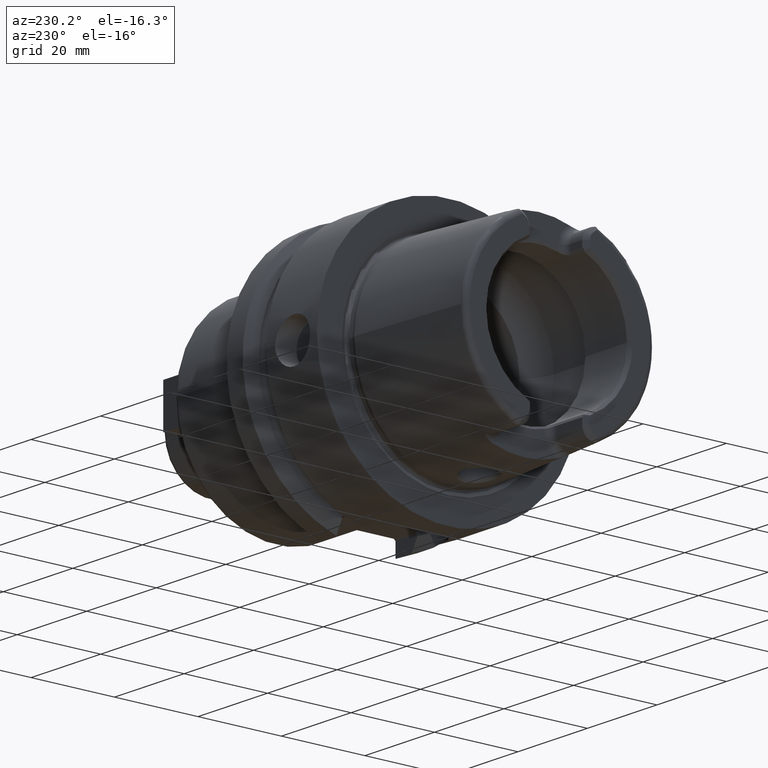
[diagram: clean part render]
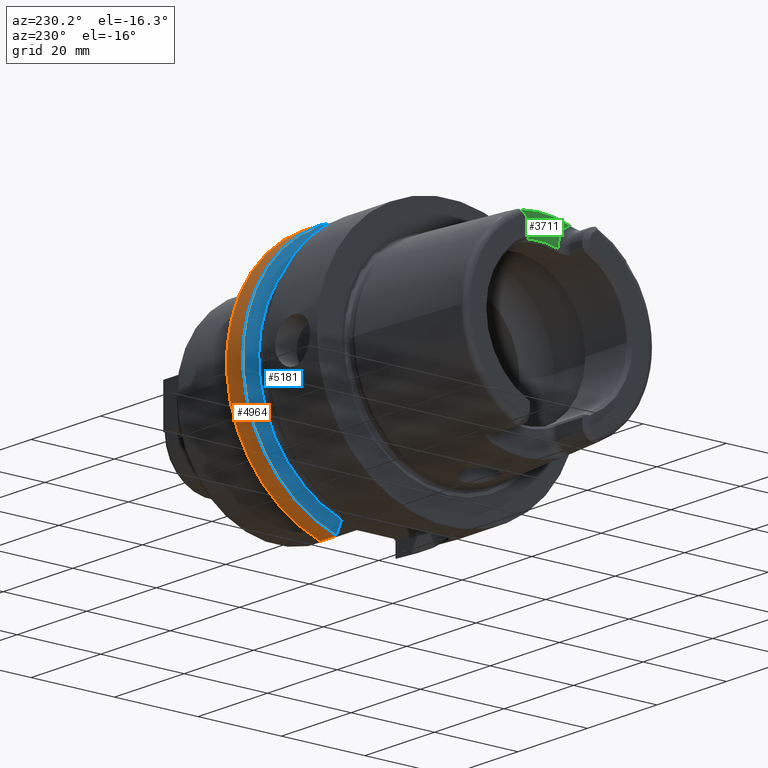
[diagram: same view with three faces highlighted in distinct colors, each labeled with its STEP entity id]
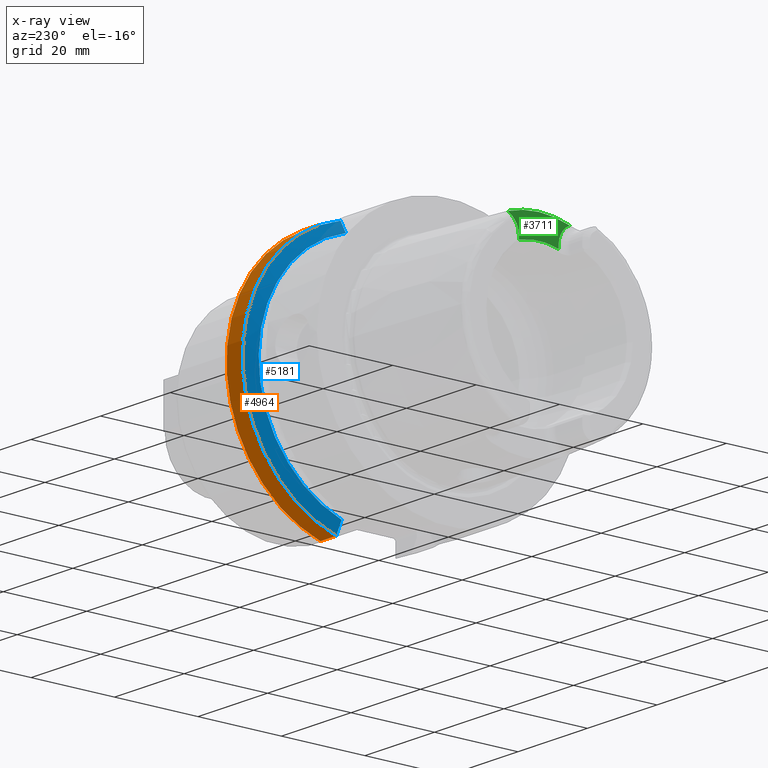
[diagram: x-ray of the same camera — body ghosted, the three highlighted faces saturated]
A machine part, auxiliary view with three faces highlighted in distinct colors.
The next image is the same camera in x-ray (body ghosted, the three faces saturated) — at least one of them is partly hidden behind the body in this view.
Their STEP definitions:

[orange] entity #4964 — the highlighted cylindrical surface (partial cylindrical patch) has radius 31.5 mm, axis along (1, 0, 0).
#1324=DIRECTION('',(-1.E0,0.E0,0.E0));
#1325=VECTOR('',#1324,4.622500925241E0);
#1326=CARTESIAN_POINT('',(2.6E1,9.0175E0,-3.018169467989E1));
#1327=LINE('',#1326,#1325);
#1557=DIRECTION('',(1.E0,0.E0,0.E0));
#1558=VECTOR('',#1557,4.622500925241E0);
#1559=CARTESIAN_POINT('',(2.137749907476E1,8.0175E0,3.046259499370E1));
#1560=LINE('',#1559,#1558);
#1565=CARTESIAN_POINT('',(2.6E1,0.E0,0.E0));
#1566=DIRECTION('',(1.E0,0.E0,0.E0));
#1567=DIRECTION('',(0.E0,2.862698412698E-1,-9.581490374568E-1));
#1568=AXIS2_PLACEMENT_3D('',#1565,#1566,#1567);
#1773=CARTESIAN_POINT('',(2.137749907476E1,9.0175E0,-3.018169467989E1));
#1780=CARTESIAN_POINT('',(2.137749907476E1,0.E0,0.E0));
#1781=DIRECTION('',(1.E0,0.E0,0.E0));
#1782=DIRECTION('',(0.E0,2.862698412698E-1,-9.581490374568E-1));
#1783=AXIS2_PLACEMENT_3D('',#1780,#1781,#1782);
#1790=CARTESIAN_POINT('',(2.137749907476E1,8.0175E0,3.046259499370E1));
#3124=VERTEX_POINT('',#1790);
#3153=VERTEX_POINT('',#1773);
#3155=CARTESIAN_POINT('',(2.6E1,9.0175E0,-3.018169467989E1));
#3156=CARTESIAN_POINT('',(2.6E1,8.0175E0,3.046259499370E1));
#3157=VERTEX_POINT('',#3155);
#3158=VERTEX_POINT('',#3156);
#4951=CARTESIAN_POINT('',(-3.49E1,0.E0,0.E0));
#4952=DIRECTION('',(1.E0,0.E0,0.E0));
#4953=DIRECTION('',(0.E0,-1.E0,0.E0));
#4954=AXIS2_PLACEMENT_3D('',#4951,#4952,#4953);
#4955=CYLINDRICAL_SURFACE('',#4954,3.15E1);
#4956=ORIENTED_EDGE('',*,*,#4665,.F.);
#4958=ORIENTED_EDGE('',*,*,#4957,.T.);
#4959=ORIENTED_EDGE('',*,*,#4922,.F.);
#4961=ORIENTED_EDGE('',*,*,#4960,.F.);
#4962=EDGE_LOOP('',(#4956,#4958,#4959,#4961));
#4963=FACE_OUTER_BOUND('',#4962,.F.);
#4964=ADVANCED_FACE('',(#4963),#4955,.T.);
#1569=CIRCLE('',#1568,3.15E1);
#1784=CIRCLE('',#1783,3.15E1);
#4665=EDGE_CURVE('',#3157,#3153,#1327,.T.);
#4922=EDGE_CURVE('',#3124,#3158,#1560,.T.);
#4957=EDGE_CURVE('',#3157,#3158,#1569,.T.);
#4960=EDGE_CURVE('',#3153,#3124,#1784,.T.);

[blue] entity #5181 — the highlighted conical surface has half-angle 60 deg.
#1773=CARTESIAN_POINT('',(2.137749907476E1,9.0175E0,-3.018169467989E1));
#1774=CARTESIAN_POINT('',(2.120260671566E1,9.0175E0,-2.986554088755E1));
#1775=CARTESIAN_POINT('',(2.085812292499E1,9.0175E0,-2.924200119110E1));
#1776=CARTESIAN_POINT('',(2.035750942268E1,9.0175E0,-2.833337204728E1));
#1777=CARTESIAN_POINT('',(2.003409260855E1,9.0175E0,-2.774465116011E1));
#1778=CARTESIAN_POINT('',(1.9875E1,9.0175E0,-2.745461174016E1));
#1780=CARTESIAN_POINT('',(2.137749907476E1,0.E0,0.E0));
#1781=DIRECTION('',(1.E0,0.E0,0.E0));
#1782=DIRECTION('',(0.E0,2.862698412698E-1,-9.581490374568E-1));
#1783=AXIS2_PLACEMENT_3D('',#1780,#1781,#1782);
#1785=CARTESIAN_POINT('',(1.9875E1,8.0175E0,2.776311772483E1));
#1786=CARTESIAN_POINT('',(2.003456921596E1,8.0175E0,2.805079344433E1));
#1787=CARTESIAN_POINT('',(2.035862308375E1,8.0175E0,2.863431787984E1));
#1788=CARTESIAN_POINT('',(2.085926872163E1,8.0175E0,2.953380309393E1));
#1789=CARTESIAN_POINT('',(2.120309833211E1,8.0175E0,3.015023700722E1));
#1790=CARTESIAN_POINT('',(2.137749907476E1,8.0175E0,3.046259499370E1));
#1792=CARTESIAN_POINT('',(1.9875E1,0.E0,0.E0));
#1793=DIRECTION('',(-1.E0,0.E0,0.E0));
#1794=DIRECTION('',(0.E0,2.774452312278E-1,9.607414551631E-1));
#1795=AXIS2_PLACEMENT_3D('',#1792,#1793,#1794);
#3121=CARTESIAN_POINT('',(1.9875E1,8.0175E0,2.776311772483E1));
#3122=VERTEX_POINT('',#3121);
#3124=VERTEX_POINT('',#1790);
#3145=CARTESIAN_POINT('',(1.9875E1,9.0175E0,-2.745461174016E1));
#3147=VERTEX_POINT('',#3145);
#3153=VERTEX_POINT('',#1773);
#5170=CARTESIAN_POINT('',(2.062624953738E1,0.E0,0.E0));
#5171=DIRECTION('',(1.E0,0.E0,0.E0));
#5172=DIRECTION('',(0.E0,-1.E0,0.E0));
#5173=AXIS2_PLACEMENT_3D('',#5170,#5171,#5172);
#5174=CONICAL_SURFACE('',#5173,3.019879763210E1,6.E1);
#5175=ORIENTED_EDGE('',*,*,#4667,.F.);
#5176=ORIENTED_EDGE('',*,*,#4960,.T.);
#5177=ORIENTED_EDGE('',*,*,#4930,.F.);
#5178=ORIENTED_EDGE('',*,*,#5136,.T.);
#5179=EDGE_LOOP('',(#5175,#5176,#5177,#5178));
#5180=FACE_OUTER_BOUND('',#5179,.F.);
#5181=ADVANCED_FACE('',(#5180),#5174,.T.);
#1779=B_SPLINE_CURVE_WITH_KNOTS('',3,(#1773,#1774,#1775,#1776,#1777,#1778),
.UNSPECIFIED.,.F.,.F.,(4,1,1,4),(0.E0,3.333333333333E-1,6.666666666667E-1,1.E0),
.UNSPECIFIED.);
#1784=CIRCLE('',#1783,3.15E1);
#1791=B_SPLINE_CURVE_WITH_KNOTS('',3,(#1785,#1786,#1787,#1788,#1789,#1790),
.UNSPECIFIED.,.F.,.F.,(4,1,1,4),(0.E0,3.333333333333E-1,6.666666666667E-1,1.E0),
.UNSPECIFIED.);
#1796=CIRCLE('',#1795,2.889759526419E1);
#4667=EDGE_CURVE('',#3153,#3147,#1779,.T.);
#4930=EDGE_CURVE('',#3122,#3124,#1791,.T.);
#4960=EDGE_CURVE('',#3153,#3124,#1784,.T.);
#5136=EDGE_CURVE('',#3122,#3147,#1796,.T.);

[green] entity #3711 — the highlighted planar face has unit normal (-1, 0, 0).
#9=CARTESIAN_POINT('',(-2.6E1,0.E0,0.E0));
#10=DIRECTION('',(1.E0,0.E0,0.E0));
#11=DIRECTION('',(0.E0,3.233021702202E-1,9.462957818415E-1));
#12=AXIS2_PLACEMENT_3D('',#9,#10,#11);
#508=DIRECTION('',(0.E0,1.645939623868E-11,1.E0));
#509=VECTOR('',#508,8.529199916087E-1);
#510=CARTESIAN_POINT('',(-2.6E1,4.769999999986E0,1.681708000839E1));
#511=LINE('',#510,#509);
#512=CARTESIAN_POINT('',(-2.6E1,9.27E0,1.767E1));
#513=DIRECTION('',(-1.E0,0.E0,0.E0));
#514=DIRECTION('',(0.E0,-1.E0,0.E0));
#515=AXIS2_PLACEMENT_3D('',#512,#513,#514);
#517=CARTESIAN_POINT('',(-2.6E1,-9.27E0,1.767E1));
#518=DIRECTION('',(-1.E0,0.E0,0.E0));
#519=DIRECTION('',(0.E0,4.062693958732E-1,9.137533463560E-1));
#520=AXIS2_PLACEMENT_3D('',#517,#518,#519);
#522=DIRECTION('',(0.E0,1.641566002193E-11,-1.E0));
#523=VECTOR('',#522,8.529199916084E-1);
#524=CARTESIAN_POINT('',(-2.6E1,-4.770000000001E0,1.767E1));
#525=LINE('',#524,#523);
#526=CARTESIAN_POINT('',(-2.6E1,4.769999999986E0,1.681708000839E1));
#527=CARTESIAN_POINT('',(-2.6E1,4.148583737710E0,1.699873969073E1));
#528=CARTESIAN_POINT('',(-2.6E1,2.894384068626E0,1.728890718055E1));
#529=CARTESIAN_POINT('',(-2.6E1,9.681288020921E-1,1.750922547308E1));
#530=CARTESIAN_POINT('',(-2.6E1,-9.681288020820E-1,1.750922547309E1));
#531=CARTESIAN_POINT('',(-2.6E1,-2.894384068607E0,1.728890718055E1));
#532=CARTESIAN_POINT('',(-2.6E1,-4.148583737703E0,1.699873969073E1));
#533=CARTESIAN_POINT('',(-2.6E1,-4.769999999987E0,1.681708000839E1));
#2815=CARTESIAN_POINT('',(-2.6E1,4.77E0,1.767E1));
#2817=VERTEX_POINT('',#2815);
#2819=CARTESIAN_POINT('',(-2.6E1,-4.77E0,1.767E1));
#2821=VERTEX_POINT('',#2819);
#2823=CARTESIAN_POINT('',(-2.6E1,7.441787718571E0,2.178189005860E1));
#2824=VERTEX_POINT('',#2823);
#2829=CARTESIAN_POINT('',(-2.6E1,-7.441787718571E0,2.178189005860E1));
#2830=VERTEX_POINT('',#2829);
#2867=CARTESIAN_POINT('',(-2.6E1,4.769999999986E0,1.681708000839E1));
#2868=VERTEX_POINT('',#2867);
#2869=CARTESIAN_POINT('',(-2.6E1,-4.769999999987E0,1.681708000839E1));
#2870=VERTEX_POINT('',#2869);
#3697=CARTESIAN_POINT('',(-2.6E1,0.E0,0.E0));
#3698=DIRECTION('',(-1.E0,0.E0,0.E0));
#3699=DIRECTION('',(0.E0,0.E0,1.E0));
#3700=AXIS2_PLACEMENT_3D('',#3697,#3698,#3699);
#3701=PLANE('',#3700);
#3702=ORIENTED_EDGE('',*,*,#3608,.T.);
#3703=ORIENTED_EDGE('',*,*,#3626,.T.);
#3704=ORIENTED_EDGE('',*,*,#3271,.T.);
#3705=ORIENTED_EDGE('',*,*,#3332,.T.);
#3706=ORIENTED_EDGE('',*,*,#3350,.T.);
#3708=ORIENTED_EDGE('',*,*,#3707,.F.);
#3709=EDGE_LOOP('',(#3702,#3703,#3704,#3705,#3706,#3708));
#3710=FACE_OUTER_BOUND('',#3709,.F.);
#3711=ADVANCED_FACE('',(#3710),#3701,.T.);
#13=CIRCLE('',#12,2.301805680272E1);
#516=CIRCLE('',#515,4.5E0);
#521=CIRCLE('',#520,4.5E0);
#534=B_SPLINE_CURVE_WITH_KNOTS('',3,(#526,#527,#528,#529,#530,#531,#532,#533),
.UNSPECIFIED.,.F.,.F.,(4,1,1,1,1,4),(0.E0,2.E-1,4.E-1,6.E-1,8.E-1,1.E0),
.UNSPECIFIED.);
#3271=EDGE_CURVE('',#2824,#2830,#13,.T.);
#3332=EDGE_CURVE('',#2830,#2821,#521,.T.);
#3350=EDGE_CURVE('',#2821,#2870,#525,.T.);
#3608=EDGE_CURVE('',#2868,#2817,#511,.T.);
#3626=EDGE_CURVE('',#2817,#2824,#516,.T.);
#3707=EDGE_CURVE('',#2868,#2870,#534,.T.);